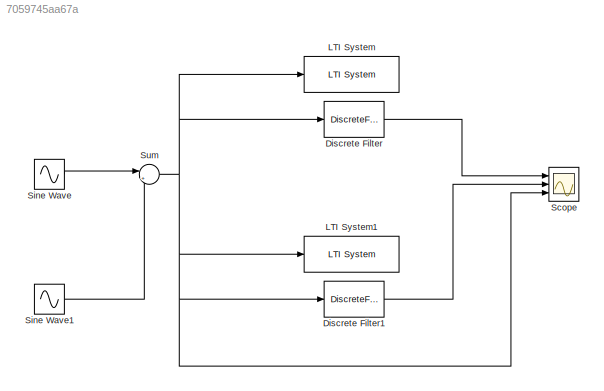
MODEL slx_7059745aa67a
KIND model
CONFIG AbsTol = auto
CONFIG FixedStep = .01*pi
CONFIG MaxStep = auto
CONFIG MinStep = auto
CONFIG RelTol = 1e-3
CONFIG SampleTimeConstraint = Unconstrained
CONFIG Solver = ode45
CONFIG SolverMode = SingleTasking
CONFIG SolverName = ode45
CONFIG StartTime = 0.0
CONFIG StopTime = 10*pi
BLOCK [DiscreteFilter] Discrete Filter
  Denominator = [1 -3.054 3.829 -2.292 .5507 0 0 0 0 0 0]
  InputPortMap = u0
  Numerator = [.001836 .007344 .01102 .007344 .001836 0 0 0 0 0 0]
  Ports = [1, 1]
BLOCK [DiscreteFilter] Discrete Filter1
  Denominator = [1 1.608 1.757 1.025 .3077 0 0 0 0 0 0]
  InputPortMap = u0
  Numerator = [.02426 -0.09704 0.1456 -.09704 .02426 0 0 0 0 0 0]
  Ports = [1, 1]
BLOCK [Reference] LTI System  REF=cstblocks/LTI System
  IC = []
  Ports = [1, 1]
  SourceBlock = cstblocks/LTI System
  SourceType = LTI Block
  sys = H_lp
BLOCK [Reference] LTI System1  REF=cstblocks/LTI System
  IC = []
  Ports = [1, 1]
  SourceBlock = cstblocks/LTI System
  SourceType = LTI Block
  sys = H_z
BLOCK [Scope] Scope
  DataFormat = StructureWithTime
  Decimation = 1
  Floating = off
  Grid = on
  LimitDataPoints = off
  MaxDataPoints = 5000
  NumInputPorts = 3
  Ports = [3]
  SampleInput = off
  SampleTime = -1
  SaveName = ScopeData
  SaveToWorkspace = off
  ShowLegends = on
  TickLabels = OneTimeTick
  TimeRange = auto
  YMax = 2.43414~5~5
  YMin = -2.48548~-5~-5
  ZoomMode = on
BLOCK [Sin] Sine Wave
  Frequency = 2*pi*.1
  Ports = [0, 1]
  SampleTime = 0
BLOCK [Sin] Sine Wave1
  Frequency = 2*pi*.9
  Ports = [0, 1]
  SampleTime = 0
BLOCK [Sum] Sum
  IconShape = round
  InputSameDT = off
  Inputs = |++
  OutDataTypeStr = Inherit: Inherit via internal rule
  Ports = [2, 1]
  SaturateOnIntegerOverflow = off
LINE Discrete Filter1:1 -> Scope:2
LINE Discrete Filter:1 -> Scope:1
LINE Sine Wave1:1 -> Sum:2
LINE Sine Wave:1 -> Sum:1
NET Sum:1 -> Discrete Filter1:1, Discrete Filter:1, LTI System1:1, LTI System:1, Scope:3
note: NET lines group one-source signal fan-out (src -> all destinations, sorted); 1:1 wires keep LINE
